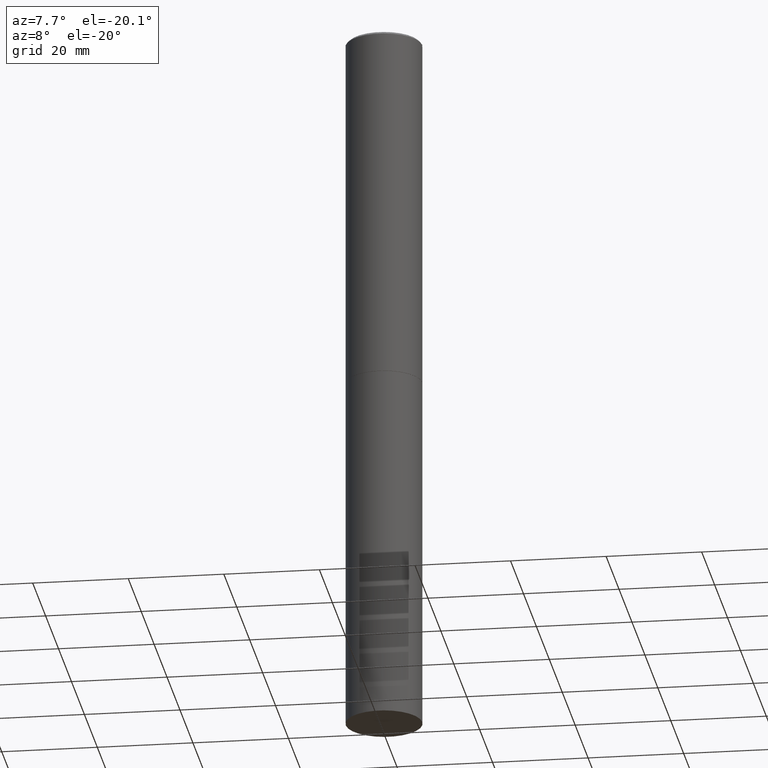
[diagram: clean part render]
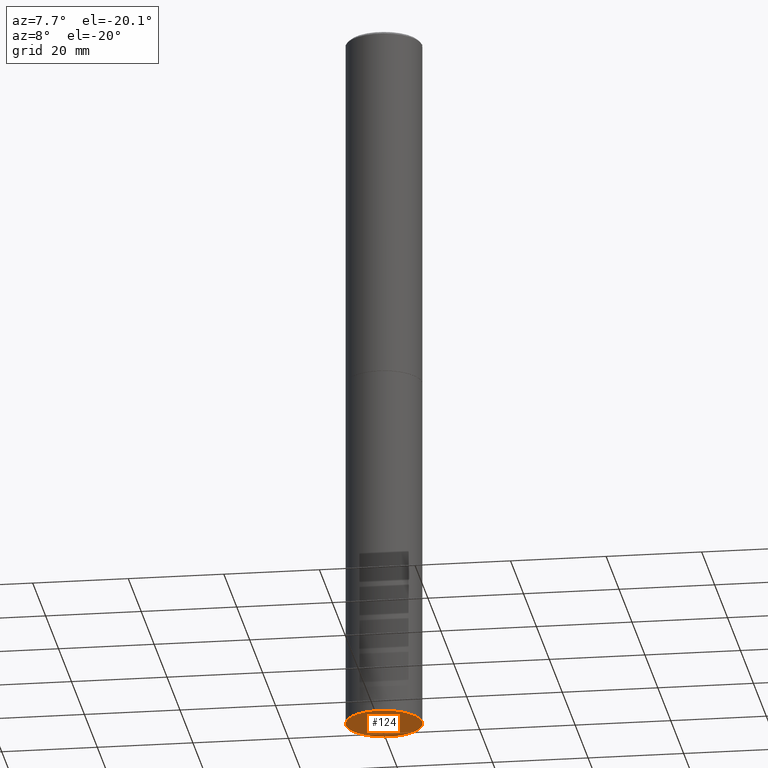
[diagram: same view with one face highlighted and labeled with its STEP entity id]
A machine part, auxiliary view. The second image highlights one B-rep face of the part: STEP entity #124.
In plain terms, the highlighted planar face has unit normal (0, -0, -1).
Its self-contained STEP definition (entity closure, byte-faithful):
#7 = EDGE_CURVE ( 'NONE', #284, #20, #109, .T. ) ;
#20 = VERTEX_POINT ( 'NONE', #353 ) ;
#30 = EDGE_CURVE ( 'NONE', #20, #284, #114, .T. ) ;
#40 = EDGE_LOOP ( 'NONE', ( #116, #257 ) ) ;
#41 = AXIS2_PLACEMENT_3D ( 'NONE', #231, #260, #177 ) ;
#63 = DIRECTION ( 'NONE',  ( 1.000000000000000000, -6.982962677686263555E-15, 0.000000000000000000 ) ) ;
#67 = AXIS2_PLACEMENT_3D ( 'NONE', #120, #263, #63 ) ;
#101 = DIRECTION ( 'NONE',  ( 2.438088387897960049E-29, -3.491481338843145188E-15, -1.000000000000000000 ) ) ;
#109 = CIRCLE ( 'NONE', #67, 0.3149500000000000077 ) ;
#114 = CIRCLE ( 'NONE', #41, 0.3149500000000000077 ) ;
#116 = ORIENTED_EDGE ( 'NONE', *, *, #30, .F. ) ;
#120 = CARTESIAN_POINT ( 'NONE',  ( 1.444171603492632270E-28, -2.061894304653819197E-14, -5.905499999999999972 ) ) ;
#124 = ADVANCED_FACE ( 'NONE', ( #352 ), #147, .T. ) ;
#143 = DIRECTION ( 'NONE',  ( -1.000000000000000000, 6.982962677686265922E-15, -4.876176775795935793E-29 ) ) ;
#147 = PLANE ( 'NONE',  #206 ) ;
#177 = DIRECTION ( 'NONE',  ( 1.000000000000000000, -6.982962677686263555E-15, 0.000000000000000000 ) ) ;
#191 = CARTESIAN_POINT ( 'NONE',  ( -0.3149500000000000077, -1.322626565159373987E-14, -5.905499999999999972 ) ) ;
#206 = AXIS2_PLACEMENT_3D ( 'NONE', #261, #101, #143 ) ;
#231 = CARTESIAN_POINT ( 'NONE',  ( 1.444171603492632270E-28, -2.061894304653819197E-14, -5.905499999999999972 ) ) ;
#257 = ORIENTED_EDGE ( 'NONE', *, *, #7, .F. ) ;
#260 = DIRECTION ( 'NONE',  ( -2.445468806185136597E-29, 3.491481338843145583E-15, 1.000000000000000000 ) ) ;
#261 = CARTESIAN_POINT ( 'NONE',  ( 2.199284095337433838E-15, 0.3149499999999793576, -5.905500000000000860 ) ) ;
#263 = DIRECTION ( 'NONE',  ( -2.445468806185136597E-29, 3.491481338843145583E-15, 1.000000000000000000 ) ) ;
#284 = VERTEX_POINT ( 'NONE', #191 ) ;
#352 = FACE_OUTER_BOUND ( 'NONE', #40, .T. ) ;
#353 = CARTESIAN_POINT ( 'NONE',  ( 0.3149500000000000077, -2.281822714187548341E-14, -5.905499999999999972 ) ) ;